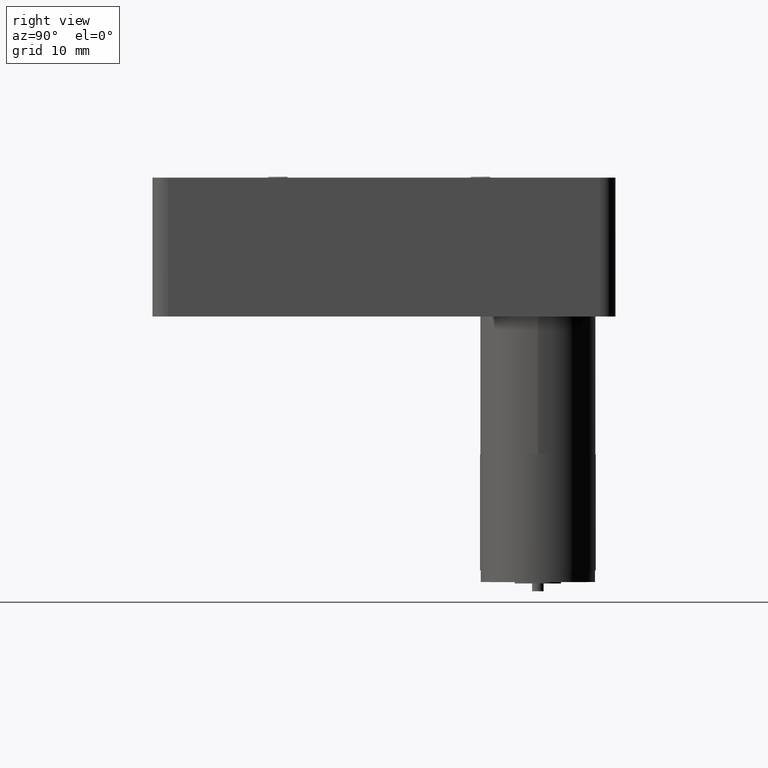
[diagram: clean part render]
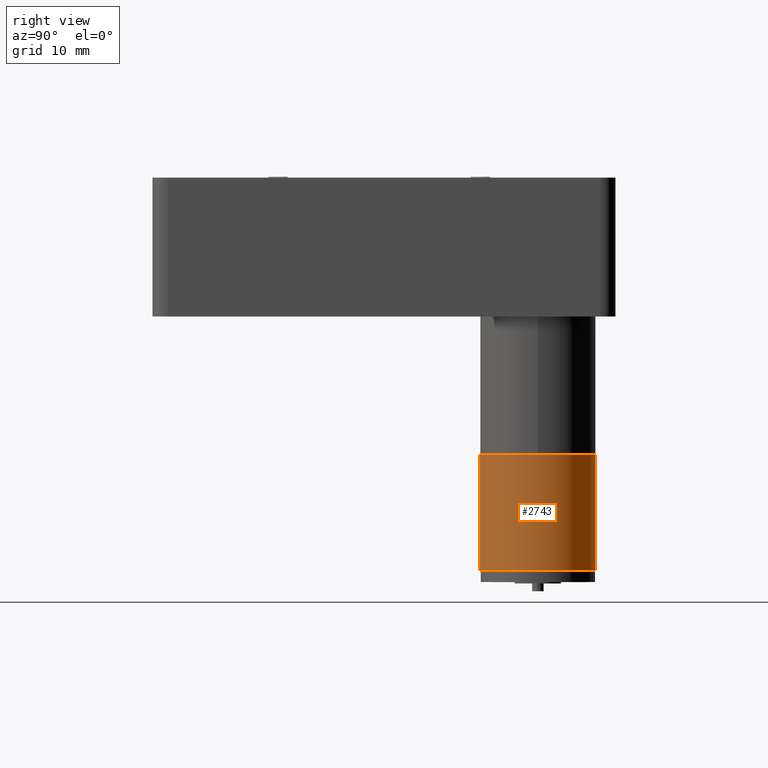
[diagram: same view with one face highlighted and labeled with its STEP entity id]
A machine part, right view. The second image highlights one B-rep face of the part: STEP entity #2743.
In plain terms, the highlighted cylindrical surface (partial cylindrical patch) has radius 7.5 mm, axis along (0, -0, -1).
Its self-contained STEP definition (entity closure, byte-faithful):
#58 = VECTOR ( 'NONE', #3012, 1000.000000000000000 ) ;
#395 = EDGE_CURVE ( 'NONE', #6026, #4257, #1628, .T. ) ;
#480 = CARTESIAN_POINT ( 'NONE',  ( 39.40000000000000600, 42.44153162899190300, -35.89999999999999900 ) ) ;
#597 = EDGE_CURVE ( 'NONE', #3642, #4315, #3185, .T. ) ;
#855 = CARTESIAN_POINT ( 'NONE',  ( 39.39999999999997700, 49.94153162899190300, -35.89999999999999900 ) ) ;
#910 = CARTESIAN_POINT ( 'NONE',  ( 39.39999999999994900, 57.44153162899190300, -35.89999999999999900 ) ) ;
#1486 = AXIS2_PLACEMENT_3D ( 'NONE', #855, #4275, #3141 ) ;
#1578 = ORIENTED_EDGE ( 'NONE', *, *, #597, .T. ) ;
#1628 = LINE ( 'NONE', #3830, #5954 ) ;
#1646 = DIRECTION ( 'NONE',  ( -1.063288424787887300E-017, 6.030208312509483200E-017, 1.000000000000000000 ) ) ;
#1660 = EDGE_LOOP ( 'NONE', ( #5210, #2765, #1578, #6915 ) ) ;
#2034 = EDGE_CURVE ( 'NONE', #3642, #6026, #2392, .T. ) ;
#2392 = CIRCLE ( 'NONE', #5357, 7.500000000000000000 ) ;
#2584 = CARTESIAN_POINT ( 'NONE',  ( 39.39999999999997700, 49.94153162899190300, -20.89999999999999500 ) ) ;
#2743 = ADVANCED_FACE ( 'NONE', ( #6272 ), #5926, .T. ) ;
#2764 = DIRECTION ( 'NONE',  ( 1.063288424787887300E-017, -6.030208312509483200E-017, -1.000000000000000000 ) ) ;
#2765 = ORIENTED_EDGE ( 'NONE', *, *, #2034, .F. ) ;
#3012 = DIRECTION ( 'NONE',  ( 1.063288424787887300E-017, -6.030208312509483200E-017, -1.000000000000000000 ) ) ;
#3141 = DIRECTION ( 'NONE',  ( -3.700743415417188700E-015, 1.000000000000000000, 0.0000000000000000000 ) ) ;
#3185 = LINE ( 'NONE', #4599, #58 ) ;
#3642 = VERTEX_POINT ( 'NONE', #7166 ) ;
#3830 = CARTESIAN_POINT ( 'NONE',  ( 39.39999999999994900, 57.44153162899190300, -20.89999999999999500 ) ) ;
#3937 = CARTESIAN_POINT ( 'NONE',  ( 39.39999999999994900, 57.44153162899190300, -20.89999999999999500 ) ) ;
#3963 = CARTESIAN_POINT ( 'NONE',  ( 39.39999999999997700, 49.94153162899190300, -20.89999999999999500 ) ) ;
#4257 = VERTEX_POINT ( 'NONE', #910 ) ;
#4275 = DIRECTION ( 'NONE',  ( -1.063288424787887300E-017, 6.030208312509483200E-017, 1.000000000000000000 ) ) ;
#4315 = VERTEX_POINT ( 'NONE', #480 ) ;
#4599 = CARTESIAN_POINT ( 'NONE',  ( 39.40000000000000600, 42.44153162899190300, -20.89999999999999500 ) ) ;
#5012 = DIRECTION ( 'NONE',  ( -3.700743415417188700E-015, 1.000000000000000000, 0.0000000000000000000 ) ) ;
#5179 = AXIS2_PLACEMENT_3D ( 'NONE', #2584, #7017, #5485 ) ;
#5210 = ORIENTED_EDGE ( 'NONE', *, *, #395, .F. ) ;
#5357 = AXIS2_PLACEMENT_3D ( 'NONE', #3963, #1646, #5012 ) ;
#5485 = DIRECTION ( 'NONE',  ( 3.700743415417188700E-015, -1.000000000000000000, 0.0000000000000000000 ) ) ;
#5926 = CYLINDRICAL_SURFACE ( 'NONE', #5179, 7.500000000000000000 ) ;
#5954 = VECTOR ( 'NONE', #2764, 1000.000000000000000 ) ;
#6026 = VERTEX_POINT ( 'NONE', #3937 ) ;
#6040 = CIRCLE ( 'NONE', #1486, 7.500000000000000000 ) ;
#6272 = FACE_OUTER_BOUND ( 'NONE', #1660, .T. ) ;
#6593 = EDGE_CURVE ( 'NONE', #4315, #4257, #6040, .T. ) ;
#6915 = ORIENTED_EDGE ( 'NONE', *, *, #6593, .T. ) ;
#7017 = DIRECTION ( 'NONE',  ( 1.063288424787887300E-017, -6.030208312509483200E-017, -1.000000000000000000 ) ) ;
#7166 = CARTESIAN_POINT ( 'NONE',  ( 39.40000000000000600, 42.44153162899190300, -20.89999999999999500 ) ) ;